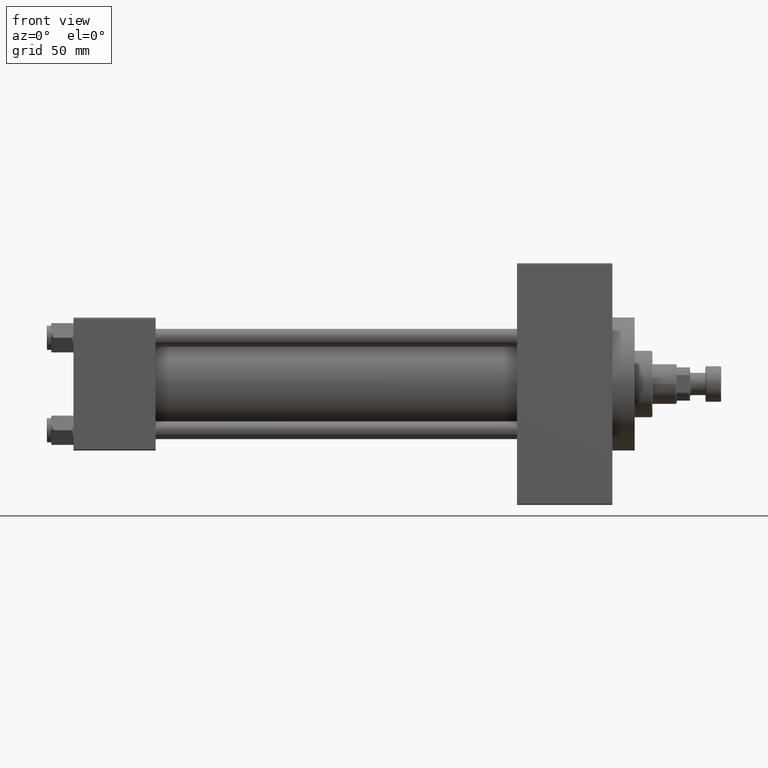
[diagram: clean part render]
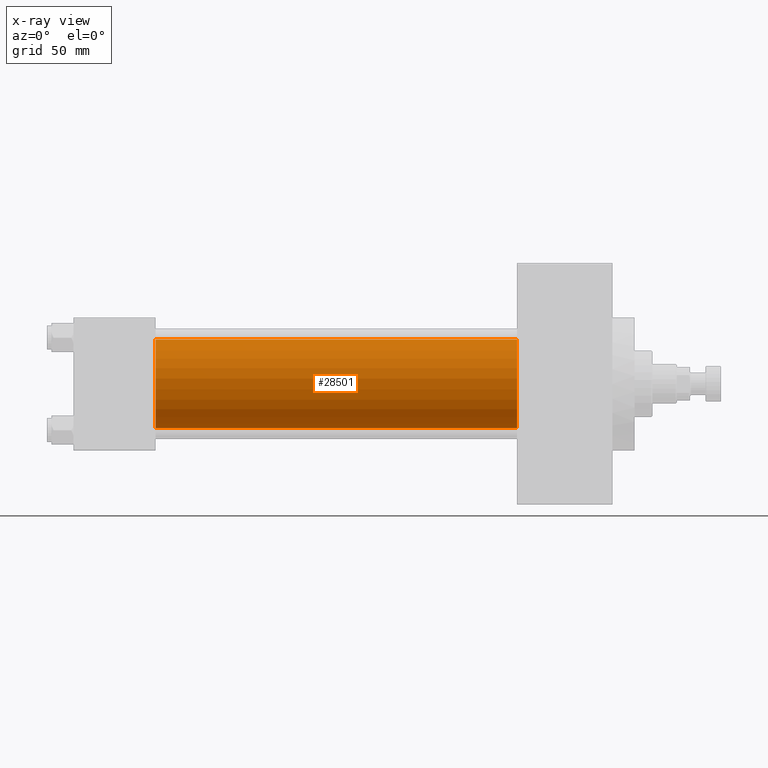
[diagram: x-ray — body ghosted, one internal face saturated and labeled with its STEP entity id]
A machine part, front view, then the same camera in x-ray: the body is ghosted and one INTERNAL B-rep face — a face not visible from any outside direction — is saturated and labeled: STEP entity #28501.
In plain terms, the highlighted cylindrical surface (partial cylindrical patch) has radius 20 mm, axis along (-1, -0, -0).
Its self-contained STEP definition (entity closure, byte-faithful):
#153 = CIRCLE ( 'NONE', #28267, 20.00000000000000000 ) ;
#402 = CARTESIAN_POINT ( 'NONE',  ( 200.0000000000000000, -2.602085213965210642E-15, 0.000000000000000000 ) ) ;
#607 = AXIS2_PLACEMENT_3D ( 'NONE', #28098, #5457, #17023 ) ;
#1932 = EDGE_LOOP ( 'NONE', ( #29709, #17534, #36616, #16951 ) ) ;
#2624 = CARTESIAN_POINT ( 'NONE',  ( 200.0000000000000000, -1.527916156705042519E-16, -20.00000000000000000 ) ) ;
#5457 = DIRECTION ( 'NONE',  ( 1.000000000000000000, 0.000000000000000000, 0.000000000000000000 ) ) ;
#8180 = EDGE_CURVE ( 'NONE', #15676, #39928, #25585, .T. ) ;
#9913 = DIRECTION ( 'NONE',  ( -1.000000000000000000, -0.000000000000000000, -0.000000000000000000 ) ) ;
#13433 = CYLINDRICAL_SURFACE ( 'NONE', #22448, 20.00000000000000000 ) ;
#13676 = CARTESIAN_POINT ( 'NONE',  ( 200.0000000000000000, -2.602085213965210642E-15, 0.000000000000000000 ) ) ;
#15676 = VERTEX_POINT ( 'NONE', #2624 ) ;
#15736 = DIRECTION ( 'NONE',  ( 1.000000000000000000, 0.000000000000000000, 0.000000000000000000 ) ) ;
#16951 = ORIENTED_EDGE ( 'NONE', *, *, #24232, .F. ) ;
#17023 = DIRECTION ( 'NONE',  ( 0.000000000000000000, 0.000000000000000000, -1.000000000000000000 ) ) ;
#17199 = DIRECTION ( 'NONE',  ( 0.000000000000000000, 0.000000000000000000, 1.000000000000000000 ) ) ;
#17452 = FACE_OUTER_BOUND ( 'NONE', #1932, .T. ) ;
#17534 = ORIENTED_EDGE ( 'NONE', *, *, #8180, .T. ) ;
#17654 = CARTESIAN_POINT ( 'NONE',  ( 200.0000000000000000, -2.602085213965210642E-15, 20.00000000000000000 ) ) ;
#22205 = CARTESIAN_POINT ( 'NONE',  ( 200.0000000000000000, -2.602085213965210642E-15, 20.00000000000000000 ) ) ;
#22448 = AXIS2_PLACEMENT_3D ( 'NONE', #13676, #9913, #17199 ) ;
#24232 = EDGE_CURVE ( 'NONE', #26197, #48354, #49629, .T. ) ;
#24641 = EDGE_CURVE ( 'NONE', #48354, #39928, #39985, .T. ) ;
#25585 = LINE ( 'NONE', #45446, #39482 ) ;
#26197 = VERTEX_POINT ( 'NONE', #17654 ) ;
#28098 = CARTESIAN_POINT ( 'NONE',  ( 37.00000000000000000, -2.602085213965210642E-15, 0.000000000000000000 ) ) ;
#28267 = AXIS2_PLACEMENT_3D ( 'NONE', #402, #15736, #34361 ) ;
#28501 = ADVANCED_FACE ( 'NONE', ( #17452 ), #13433, .F. ) ;
#29709 = ORIENTED_EDGE ( 'NONE', *, *, #37912, .T. ) ;
#30642 = CARTESIAN_POINT ( 'NONE',  ( 37.00000000000000000, -1.527916156705042519E-16, -20.00000000000000000 ) ) ;
#33780 = DIRECTION ( 'NONE',  ( -1.000000000000000000, -0.000000000000000000, -0.000000000000000000 ) ) ;
#34361 = DIRECTION ( 'NONE',  ( 0.000000000000000000, 0.000000000000000000, -1.000000000000000000 ) ) ;
#36616 = ORIENTED_EDGE ( 'NONE', *, *, #24641, .F. ) ;
#37912 = EDGE_CURVE ( 'NONE', #26197, #15676, #153, .T. ) ;
#39482 = VECTOR ( 'NONE', #48241, 1000.000000000000000 ) ;
#39928 = VERTEX_POINT ( 'NONE', #30642 ) ;
#39985 = CIRCLE ( 'NONE', #607, 20.00000000000000000 ) ;
#43880 = CARTESIAN_POINT ( 'NONE',  ( 37.00000000000000000, -2.602085213965210642E-15, 20.00000000000000000 ) ) ;
#45446 = CARTESIAN_POINT ( 'NONE',  ( 200.0000000000000000, -1.527916156705042519E-16, -20.00000000000000000 ) ) ;
#48001 = VECTOR ( 'NONE', #33780, 1000.000000000000000 ) ;
#48241 = DIRECTION ( 'NONE',  ( -1.000000000000000000, -0.000000000000000000, -0.000000000000000000 ) ) ;
#48354 = VERTEX_POINT ( 'NONE', #43880 ) ;
#49629 = LINE ( 'NONE', #22205, #48001 ) ;